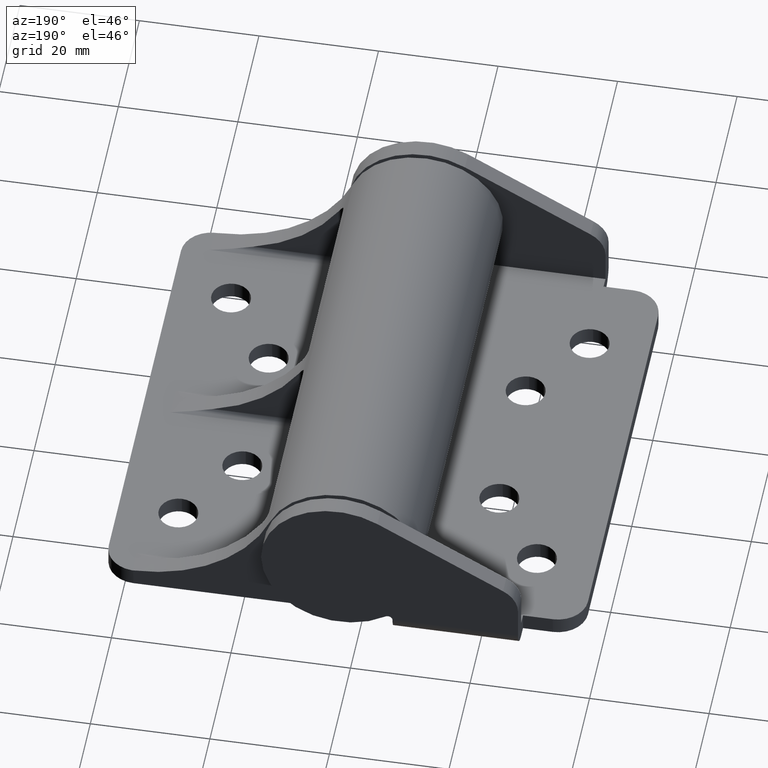
[diagram: clean part render]
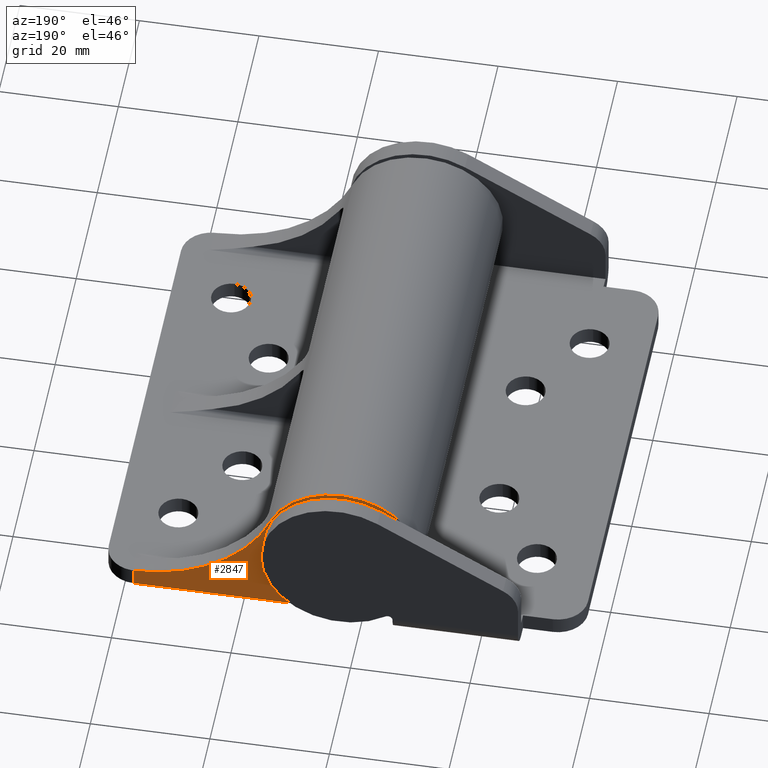
[diagram: same view with one face highlighted and labeled with its STEP entity id]
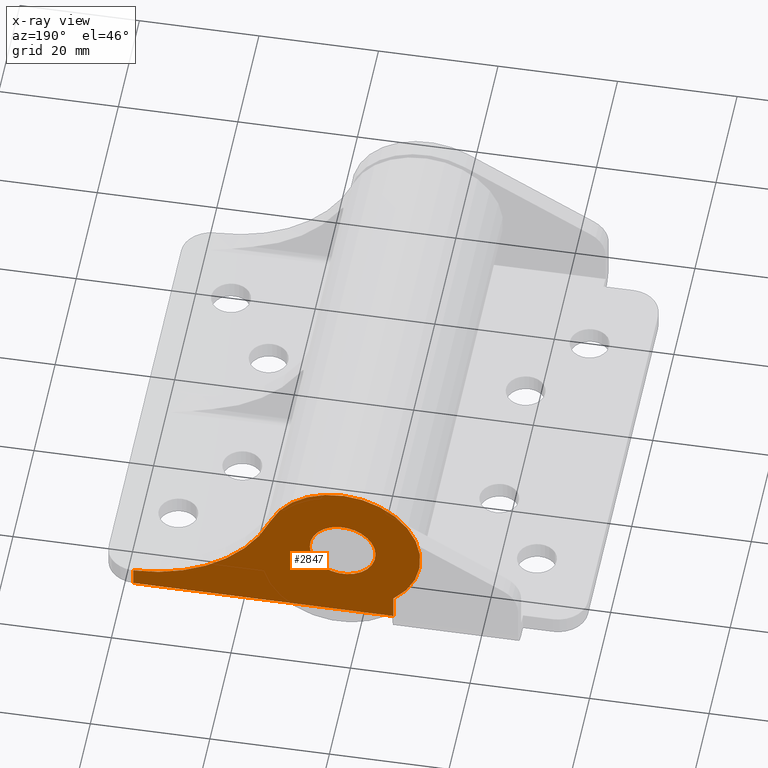
[diagram: x-ray of the same camera — body ghosted, the highlighted face saturated]
A machine part, auxiliary view. The second image highlights one B-rep face of the part: STEP entity #2847.
The next image is the same camera in x-ray: the body ghosted, the highlighted face saturated — about 0% of this face is hidden behind the body in this view.
In plain terms, the highlighted planar face has unit normal (0, 1, 0).
Its self-contained STEP definition (entity closure, byte-faithful):
#162 = CARTESIAN_POINT ( 'NONE',  ( 0.0000000000000000000, 0.0000000000000000000, 82.25000000000000000 ) ) ;
#220 = VERTEX_POINT ( 'NONE', #1240 ) ;
#226 = CIRCLE ( 'NONE', #2150, 5.500000000000000000 ) ;
#239 = DIRECTION ( 'NONE',  ( -1.000000000000000000, -0.0000000000000000000, -0.0000000000000000000 ) ) ;
#329 = ORIENTED_EDGE ( 'NONE', *, *, #2419, .T. ) ;
#335 = LINE ( 'NONE', #675, #3422 ) ;
#393 = EDGE_CURVE ( 'NONE', #2987, #220, #1343, .T. ) ;
#413 = CIRCLE ( 'NONE', #2427, 13.00000000000000000 ) ;
#430 = LINE ( 'NONE', #3739, #3336 ) ;
#465 = DIRECTION ( 'NONE',  ( 1.000000000000000000, 0.0000000000000000000, 0.0000000000000000000 ) ) ;
#495 = VERTEX_POINT ( 'NONE', #1814 ) ;
#572 = ORIENTED_EDGE ( 'NONE', *, *, #2894, .F. ) ;
#675 = CARTESIAN_POINT ( 'NONE',  ( 35.00000000000000000, 14.00000000000000000, 82.25000000000000000 ) ) ;
#712 = DIRECTION ( 'NONE',  ( 0.0000000000000000000, 0.0000000000000000000, 1.000000000000000000 ) ) ;
#744 = CARTESIAN_POINT ( 'NONE',  ( 0.0000000000000000000, 0.0000000000000000000, 82.25000000000000000 ) ) ;
#977 = ORIENTED_EDGE ( 'NONE', *, *, #2355, .T. ) ;
#1042 = DIRECTION ( 'NONE',  ( 1.000000000000000000, 0.0000000000000000000, 0.0000000000000000000 ) ) ;
#1081 = EDGE_LOOP ( 'NONE', ( #2621, #1791 ) ) ;
#1240 = CARTESIAN_POINT ( 'NONE',  ( -5.500000000000000000, 6.735557395310442000E-016, 82.25000000000000000 ) ) ;
#1320 = PLANE ( 'NONE',  #2625 ) ;
#1343 = CIRCLE ( 'NONE', #1528, 5.500000000000000000 ) ;
#1345 = DIRECTION ( 'NONE',  ( -0.0000000000000000000, -1.000000000000000000, -0.0000000000000000000 ) ) ;
#1380 = VERTEX_POINT ( 'NONE', #3733 ) ;
#1451 = CARTESIAN_POINT ( 'NONE',  ( 35.32704350000000200, -14.00000000000000000, 82.25000000000000000 ) ) ;
#1517 = LINE ( 'NONE', #2913, #2308 ) ;
#1528 = AXIS2_PLACEMENT_3D ( 'NONE', #3297, #3494, #3313 ) ;
#1757 = DIRECTION ( 'NONE',  ( 1.000000000000000000, 9.020562075079396900E-016, 0.0000000000000000000 ) ) ;
#1791 = ORIENTED_EDGE ( 'NONE', *, *, #3185, .F. ) ;
#1814 = CARTESIAN_POINT ( 'NONE',  ( 35.00000000000000000, 10.99786075945515900, 82.25000000000000000 ) ) ;
#1830 = EDGE_LOOP ( 'NONE', ( #2415, #977, #3768, #329, #572 ) ) ;
#1846 = DIRECTION ( 'NONE',  ( 0.0000000000000000000, 1.000000000000000000, 0.0000000000000000000 ) ) ;
#1980 = FACE_OUTER_BOUND ( 'NONE', #1830, .T. ) ;
#2074 = FACE_BOUND ( 'NONE', #1081, .T. ) ;
#2150 = AXIS2_PLACEMENT_3D ( 'NONE', #2489, #712, #2794 ) ;
#2244 = DIRECTION ( 'NONE',  ( -0.0000000000000000000, -0.0000000000000000000, -1.000000000000000000 ) ) ;
#2308 = VECTOR ( 'NONE', #239, 1000.000000000000000 ) ;
#2355 = EDGE_CURVE ( 'NONE', #495, #3857, #335, .T. ) ;
#2415 = ORIENTED_EDGE ( 'NONE', *, *, #3819, .T. ) ;
#2419 = EDGE_CURVE ( 'NONE', #3530, #3806, #430, .T. ) ;
#2427 = AXIS2_PLACEMENT_3D ( 'NONE', #162, #2244, #465 ) ;
#2489 = CARTESIAN_POINT ( 'NONE',  ( 0.0000000000000000000, 0.0000000000000000000, 82.25000000000000000 ) ) ;
#2621 = ORIENTED_EDGE ( 'NONE', *, *, #393, .F. ) ;
#2625 = AXIS2_PLACEMENT_3D ( 'NONE', #744, #2822, #1042 ) ;
#2671 = CARTESIAN_POINT ( 'NONE',  ( 35.00000000000000000, 14.00000000000000000, 82.25000000000000000 ) ) ;
#2794 = DIRECTION ( 'NONE',  ( 1.000000000000000000, 0.0000000000000000000, 0.0000000000000000000 ) ) ;
#2822 = DIRECTION ( 'NONE',  ( 0.0000000000000000000, 0.0000000000000000000, 1.000000000000000000 ) ) ;
#2847 = ADVANCED_FACE ( 'NONE', ( #1980, #2074 ), #1320, .T. ) ;
#2894 = EDGE_CURVE ( 'NONE', #1380, #3806, #413, .T. ) ;
#2913 = CARTESIAN_POINT ( 'NONE',  ( 40.00000000000000000, 14.00000000000000000, 82.25000000000000000 ) ) ;
#2927 = CARTESIAN_POINT ( 'NONE',  ( -8.500000000000000000, 9.836157786453000500, 82.25000000000000000 ) ) ;
#2987 = VERTEX_POINT ( 'NONE', #3469 ) ;
#3185 = EDGE_CURVE ( 'NONE', #220, #2987, #226, .T. ) ;
#3297 = CARTESIAN_POINT ( 'NONE',  ( 0.0000000000000000000, 0.0000000000000000000, 82.25000000000000000 ) ) ;
#3313 = DIRECTION ( 'NONE',  ( 1.000000000000000000, 0.0000000000000000000, 0.0000000000000000000 ) ) ;
#3321 = CARTESIAN_POINT ( 'NONE',  ( -8.500000000000000000, 14.00000000000000000, 82.25000000000000000 ) ) ;
#3336 = VECTOR ( 'NONE', #1345, 1000.000000000000000 ) ;
#3422 = VECTOR ( 'NONE', #1846, 1000.000000000000000 ) ;
#3469 = CARTESIAN_POINT ( 'NONE',  ( 5.500000000000000000, 0.0000000000000000000, 82.25000000000000000 ) ) ;
#3494 = DIRECTION ( 'NONE',  ( 0.0000000000000000000, 0.0000000000000000000, 1.000000000000000000 ) ) ;
#3530 = VERTEX_POINT ( 'NONE', #3321 ) ;
#3544 = DIRECTION ( 'NONE',  ( -0.0000000000000000000, -0.0000000000000000000, -1.000000000000000000 ) ) ;
#3570 = AXIS2_PLACEMENT_3D ( 'NONE', #1451, #3544, #1757 ) ;
#3726 = CIRCLE ( 'NONE', #3570, 25.00000000000000000 ) ;
#3733 = CARTESIAN_POINT ( 'NONE',  ( 12.08556750290151900, -4.789473680145959200, 82.25000000000000000 ) ) ;
#3739 = CARTESIAN_POINT ( 'NONE',  ( -8.500000000000000000, 14.00000000000000000, 82.25000000000000000 ) ) ;
#3755 = EDGE_CURVE ( 'NONE', #3857, #3530, #1517, .T. ) ;
#3768 = ORIENTED_EDGE ( 'NONE', *, *, #3755, .T. ) ;
#3806 = VERTEX_POINT ( 'NONE', #2927 ) ;
#3819 = EDGE_CURVE ( 'NONE', #1380, #495, #3726, .T. ) ;
#3857 = VERTEX_POINT ( 'NONE', #2671 ) ;